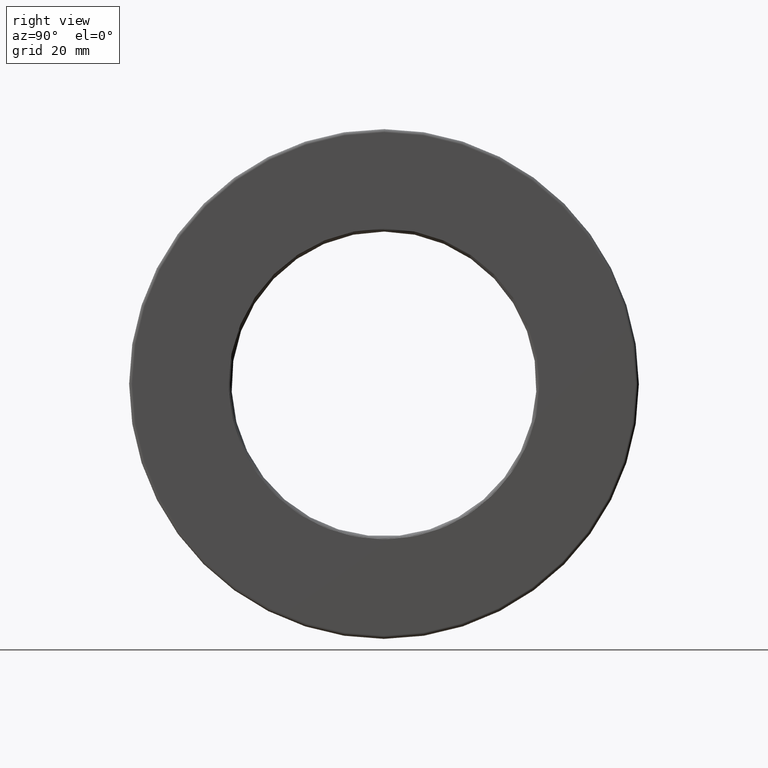
[diagram: clean part render]
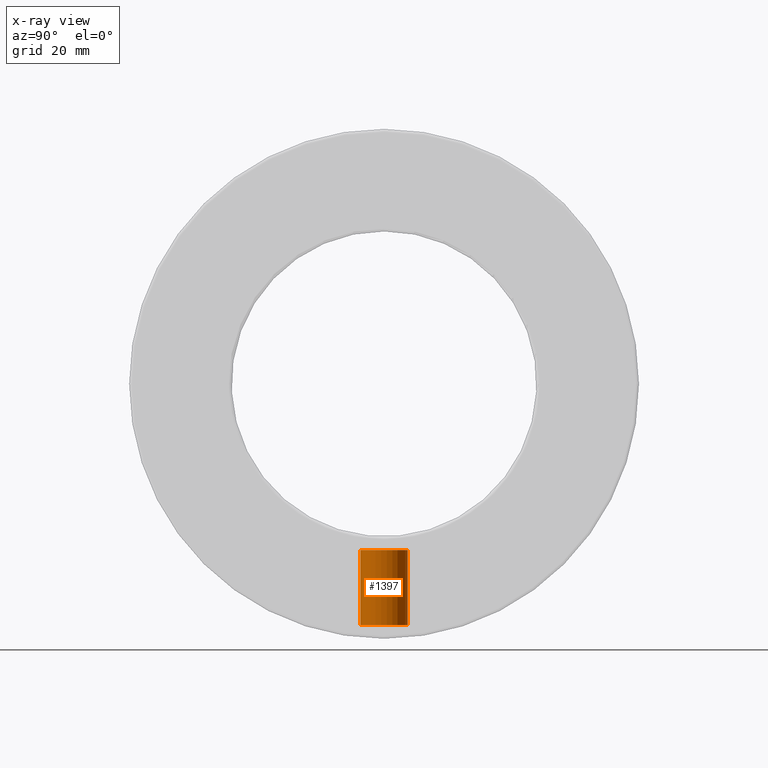
[diagram: x-ray — body ghosted, one internal face saturated and labeled with its STEP entity id]
A machine part, right view, then the same camera in x-ray: the body is ghosted and one INTERNAL B-rep face — a face not visible from any outside direction — is saturated and labeled: STEP entity #1397.
In plain terms, the highlighted cylindrical surface (bore or boss wall) has radius 3.9624 mm, axis along (0, -0, -1).
Its self-contained STEP definition (entity closure, byte-faithful):
#9 = VERTEX_POINT ( 'NONE', #1223 ) ;
#89 = DIRECTION ( 'NONE',  ( 0.0000000000000000000, -3.491481338843133400E-015, -1.000000000000000000 ) ) ;
#111 = CARTESIAN_POINT ( 'NONE',  ( 0.0000000000000000000, 0.0000000000000000000, 0.0000000000000000000 ) ) ;
#241 = FACE_OUTER_BOUND ( 'NONE', #798, .T. ) ;
#445 = DIRECTION ( 'NONE',  ( 0.0000000000000000000, 1.000000000000000000, -3.502369222646491400E-015 ) ) ;
#455 = DIRECTION ( 'NONE',  ( 0.0000000000000000000, -3.491481338843133400E-015, -1.000000000000000000 ) ) ;
#693 = AXIS2_PLACEMENT_3D ( 'NONE', #894, #888, #1224 ) ;
#705 = EDGE_CURVE ( 'NONE', #9, #9, #1222, .T. ) ;
#712 = CIRCLE ( 'NONE', #693, 0.1559999999999998600 ) ;
#765 = AXIS2_PLACEMENT_3D ( 'NONE', #111, #455, #1123 ) ;
#798 = EDGE_LOOP ( 'NONE', ( #1322 ) ) ;
#888 = DIRECTION ( 'NONE',  ( 0.0000000000000000000, -3.491481338843133400E-015, -1.000000000000000000 ) ) ;
#894 = CARTESIAN_POINT ( 'NONE',  ( 0.0000000000000000000, -5.523087042882481300E-015, -1.581874999999999900 ) ) ;
#932 = ORIENTED_EDGE ( 'NONE', *, *, #705, .T. ) ;
#1123 = DIRECTION ( 'NONE',  ( 0.0000000000000000000, 1.000000000000000000, -3.491481338843133400E-015 ) ) ;
#1140 = FACE_OUTER_BOUND ( 'NONE', #1408, .T. ) ;
#1222 = CIRCLE ( 'NONE', #1277, 0.1560000000000000000 ) ;
#1223 = CARTESIAN_POINT ( 'NONE',  ( 0.0000000000000000000, 0.1559999999999962000, -1.090000000000000700 ) ) ;
#1224 = DIRECTION ( 'NONE',  ( 0.0000000000000000000, 1.000000000000000000, -3.502369222646494500E-015 ) ) ;
#1277 = AXIS2_PLACEMENT_3D ( 'NONE', #1329, #89, #445 ) ;
#1322 = ORIENTED_EDGE ( 'NONE', *, *, #1377, .F. ) ;
#1329 = CARTESIAN_POINT ( 'NONE',  ( 0.0000000000000000000, -3.805714659339015800E-015, -1.090000000000000100 ) ) ;
#1342 = CARTESIAN_POINT ( 'NONE',  ( 0.0000000000000000000, 0.1559999999999943100, -1.581875000000000400 ) ) ;
#1371 = CYLINDRICAL_SURFACE ( 'NONE', #765, 0.1559999999999999200 ) ;
#1377 = EDGE_CURVE ( 'NONE', #1457, #1457, #712, .T. ) ;
#1397 = ADVANCED_FACE ( 'NONE', ( #1140, #241 ), #1371, .T. ) ;
#1408 = EDGE_LOOP ( 'NONE', ( #932 ) ) ;
#1457 = VERTEX_POINT ( 'NONE', #1342 ) ;